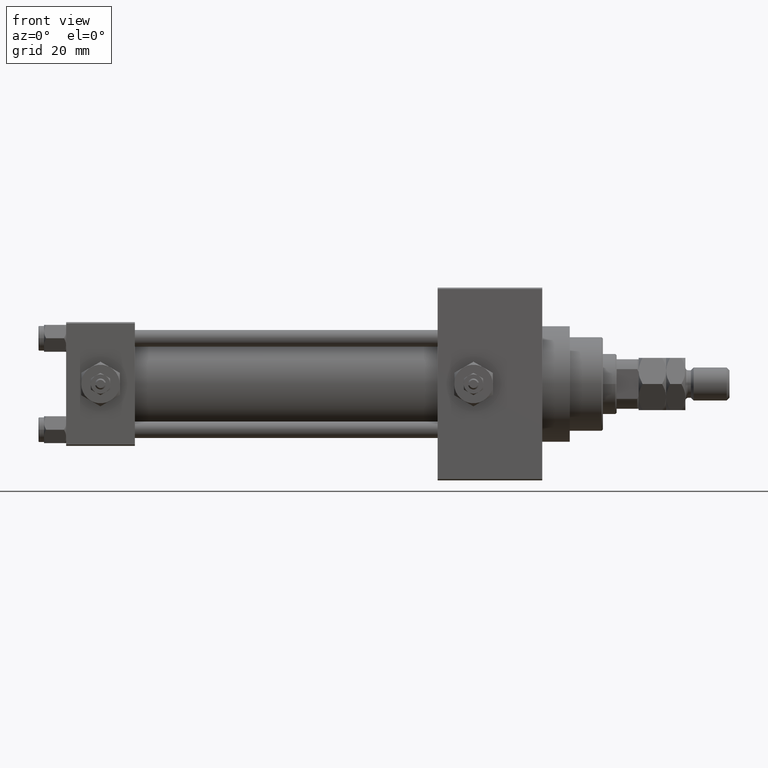
[diagram: clean part render]
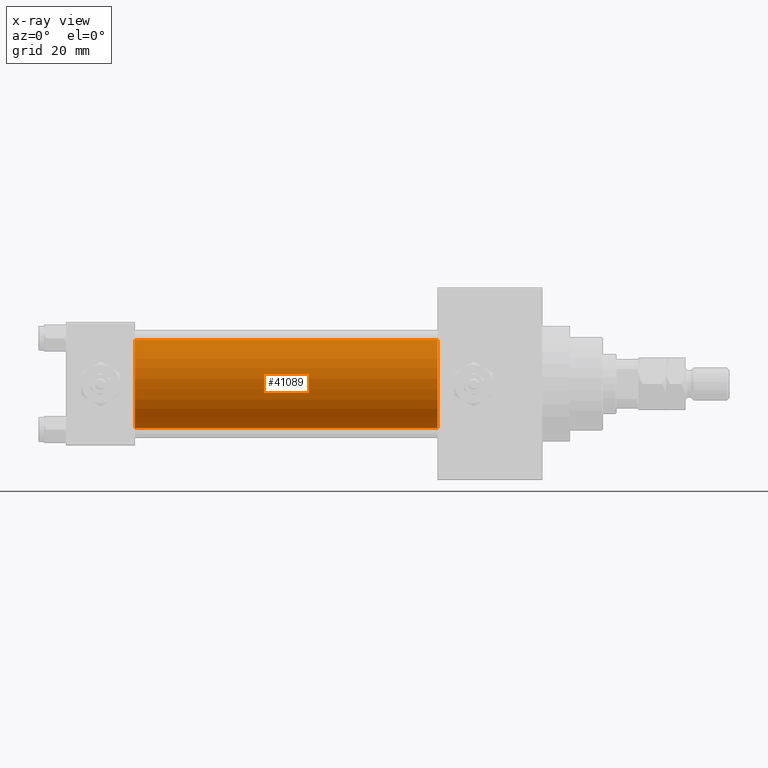
[diagram: x-ray — body ghosted, one internal face saturated and labeled with its STEP entity id]
A machine part, front view, then the same camera in x-ray: the body is ghosted and one INTERNAL B-rep face — a face not visible from any outside direction — is saturated and labeled: STEP entity #41089.
In plain terms, the highlighted cylindrical surface (partial cylindrical patch) has radius 16 mm, axis along (-1, -0, -0).
Its self-contained STEP definition (entity closure, byte-faithful):
#314 = CARTESIAN_POINT ( 'NONE',  ( 135.0000000000000000, -2.602085213965210642E-15, 16.00000000000000000 ) ) ;
#1146 = CIRCLE ( 'NONE', #48597, 16.00000000000000000 ) ;
#3558 = CIRCLE ( 'NONE', #4364, 16.00000000000000000 ) ;
#4364 = AXIS2_PLACEMENT_3D ( 'NONE', #11370, #27005, #46987 ) ;
#5086 = VERTEX_POINT ( 'NONE', #38418 ) ;
#5833 = EDGE_LOOP ( 'NONE', ( #16707, #17507, #48025, #47464 ) ) ;
#7478 = VECTOR ( 'NONE', #47400, 1000.000000000000000 ) ;
#10257 = DIRECTION ( 'NONE',  ( -1.000000000000000000, -0.000000000000000000, -0.000000000000000000 ) ) ;
#11370 = CARTESIAN_POINT ( 'NONE',  ( 135.0000000000000000, -2.602085213965210642E-15, 0.000000000000000000 ) ) ;
#14265 = DIRECTION ( 'NONE',  ( 0.000000000000000000, 0.000000000000000000, -1.000000000000000000 ) ) ;
#16707 = ORIENTED_EDGE ( 'NONE', *, *, #26588, .T. ) ;
#16968 = CARTESIAN_POINT ( 'NONE',  ( 25.00000000000000000, -2.602085213965210642E-15, 16.00000000000000000 ) ) ;
#17507 = ORIENTED_EDGE ( 'NONE', *, *, #40496, .T. ) ;
#19618 = CYLINDRICAL_SURFACE ( 'NONE', #41123, 16.00000000000000000 ) ;
#19870 = FACE_OUTER_BOUND ( 'NONE', #5833, .T. ) ;
#21799 = CARTESIAN_POINT ( 'NONE',  ( 135.0000000000000000, -6.426503353294456087E-16, -16.00000000000000000 ) ) ;
#26054 = DIRECTION ( 'NONE',  ( 1.000000000000000000, 0.000000000000000000, 0.000000000000000000 ) ) ;
#26588 = EDGE_CURVE ( 'NONE', #41869, #44601, #3558, .T. ) ;
#26795 = DIRECTION ( 'NONE',  ( -1.000000000000000000, -0.000000000000000000, -0.000000000000000000 ) ) ;
#27005 = DIRECTION ( 'NONE',  ( 1.000000000000000000, 0.000000000000000000, 0.000000000000000000 ) ) ;
#27071 = EDGE_CURVE ( 'NONE', #32895, #5086, #1146, .T. ) ;
#31403 = CARTESIAN_POINT ( 'NONE',  ( 135.0000000000000000, -2.602085213965210642E-15, 0.000000000000000000 ) ) ;
#31937 = CARTESIAN_POINT ( 'NONE',  ( 135.0000000000000000, -6.426503353294456087E-16, -16.00000000000000000 ) ) ;
#32020 = LINE ( 'NONE', #46896, #7478 ) ;
#32895 = VERTEX_POINT ( 'NONE', #16968 ) ;
#34623 = EDGE_CURVE ( 'NONE', #41869, #32895, #32020, .T. ) ;
#35233 = DIRECTION ( 'NONE',  ( 0.000000000000000000, 0.000000000000000000, 1.000000000000000000 ) ) ;
#38418 = CARTESIAN_POINT ( 'NONE',  ( 25.00000000000000000, -6.426503353294456087E-16, -16.00000000000000000 ) ) ;
#40496 = EDGE_CURVE ( 'NONE', #44601, #5086, #49720, .T. ) ;
#41089 = ADVANCED_FACE ( 'NONE', ( #19870 ), #19618, .F. ) ;
#41123 = AXIS2_PLACEMENT_3D ( 'NONE', #31403, #26795, #35233 ) ;
#41869 = VERTEX_POINT ( 'NONE', #314 ) ;
#44601 = VERTEX_POINT ( 'NONE', #31937 ) ;
#46896 = CARTESIAN_POINT ( 'NONE',  ( 135.0000000000000000, -2.602085213965210642E-15, 16.00000000000000000 ) ) ;
#46987 = DIRECTION ( 'NONE',  ( 0.000000000000000000, 0.000000000000000000, -1.000000000000000000 ) ) ;
#47400 = DIRECTION ( 'NONE',  ( -1.000000000000000000, -0.000000000000000000, -0.000000000000000000 ) ) ;
#47464 = ORIENTED_EDGE ( 'NONE', *, *, #34623, .F. ) ;
#48025 = ORIENTED_EDGE ( 'NONE', *, *, #27071, .F. ) ;
#48597 = AXIS2_PLACEMENT_3D ( 'NONE', #49878, #26054, #14265 ) ;
#49282 = VECTOR ( 'NONE', #10257, 1000.000000000000000 ) ;
#49720 = LINE ( 'NONE', #21799, #49282 ) ;
#49878 = CARTESIAN_POINT ( 'NONE',  ( 25.00000000000000000, -2.602085213965210642E-15, 0.000000000000000000 ) ) ;